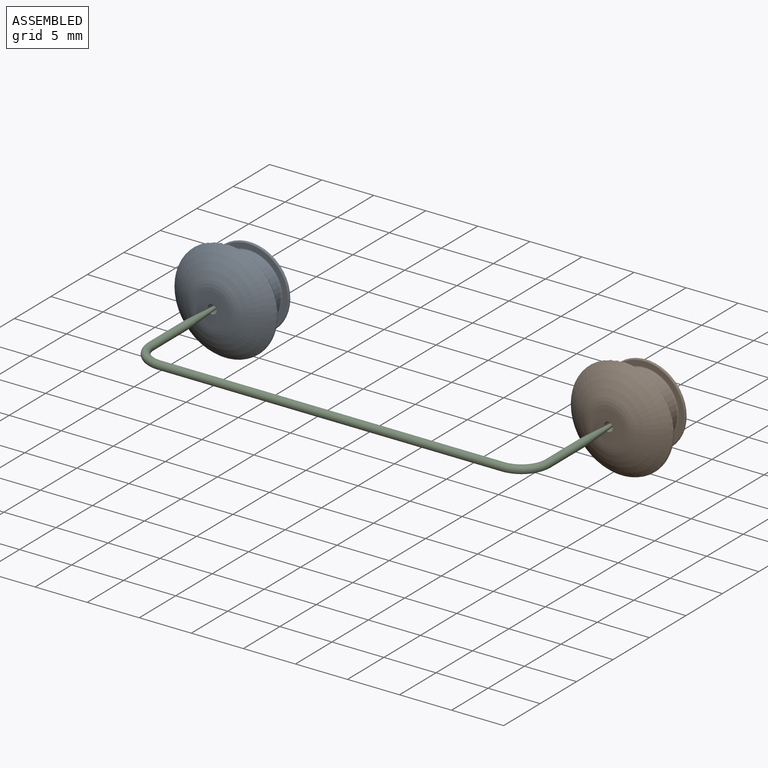
[diagram: assembled view]
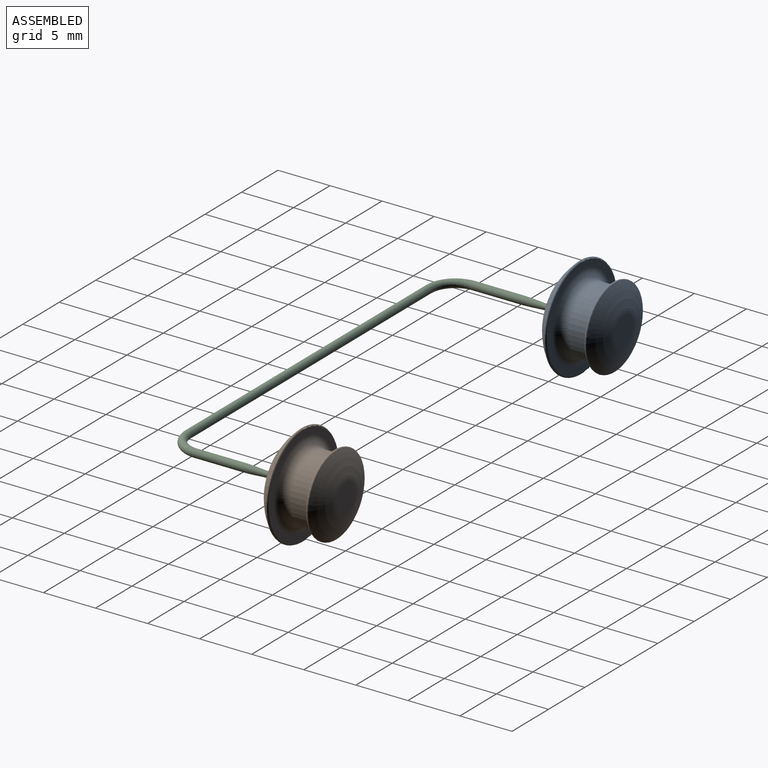
[diagram: assembled view, second angle]
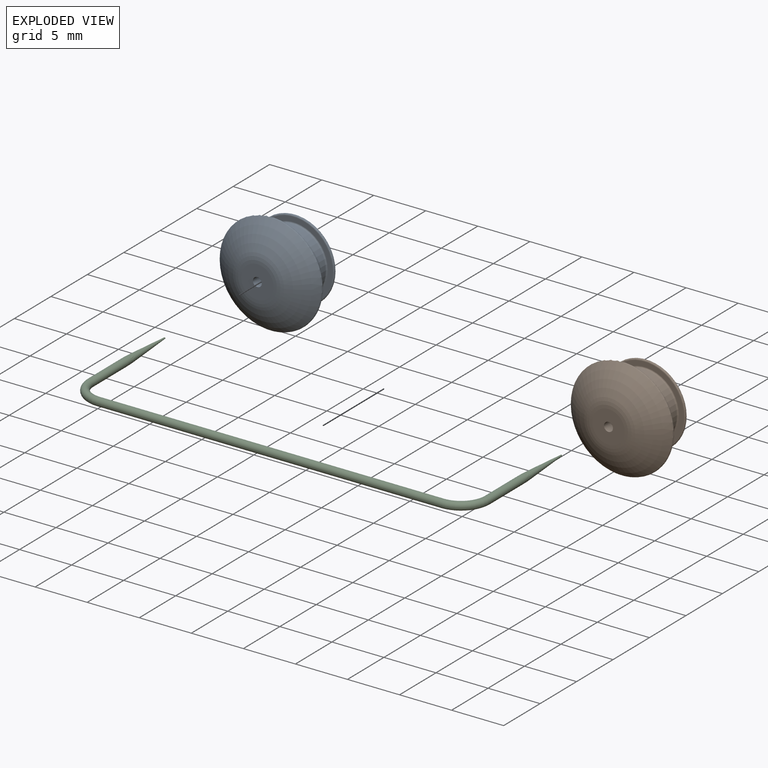
[diagram: exploded view]
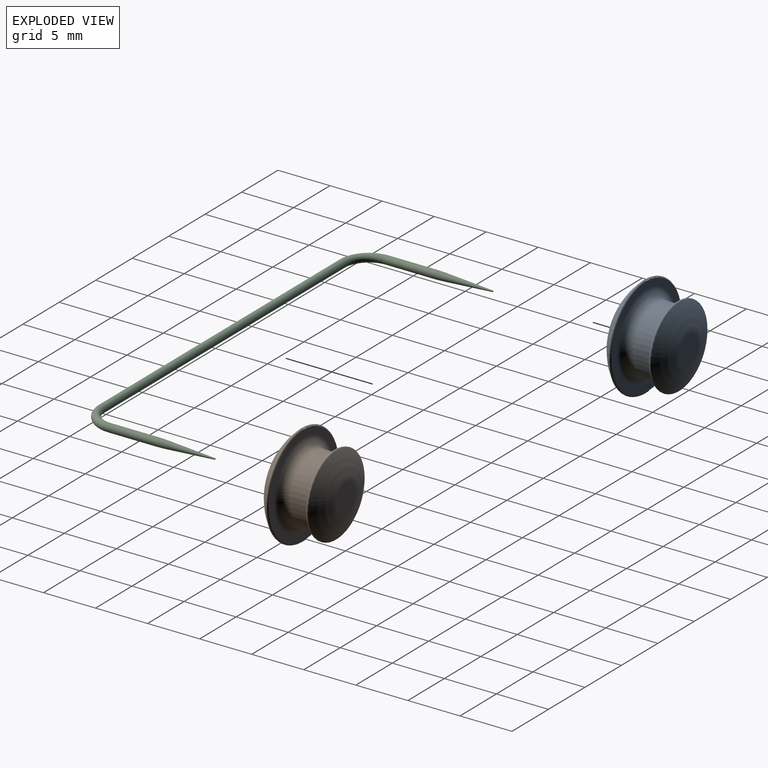
[diagram: exploded view, second angle]
ASSEMBLY  parts=3 mates=2
PART A: 15 faces, bbox 10.7x10.7x6.1 mm
  f0: torus R=0.2mm, axis (0,0,1), area 69.7mm2, adj f9,f13
  f1: plane 3.11x3.11mm, normal (0,0,1), area 7mm2, adj f11,f13
  f2: plane 2.57x2.57mm, normal (0,0,-1), area 5.2mm2, adj f14
  f3: torus R=0.59mm, axis (0,0,1), area 39.9mm2, adj f7,f14
  f4: plane 7.56x7.56mm, normal (0,0,1), area 10.5mm2, adj f7,f8
  f5: cylinder r=3.17mm len=6.35mm, axis (0,0,1), area 37.4mm2, adj f8,f12
  f6: plane 9.58x9.58mm, normal (0,0,-1), area 19.5mm2, adj f9,f12
  f7: torus R=3.78mm, axis (0,0,1), area 8.2mm2, adj f3,f4
  f8: torus R=3.31mm, axis (0,0,1), area 4.2mm2, adj f4,f5
  f9: torus R=4.79mm, axis (0,0,-1), area 9.3mm2, adj f0,f6
  f10: cone r=0mm half-angle=59deg, axis (0,0,1), area 0.7mm2, adj f11
  f11: cylinder r=0.43mm len=3.3mm, axis (0,0,1), area 9mm2, adj f1,f10
  f12: torus R=4.09mm, axis (0,0,-1), area 31.9mm2, adj f5,f6
  f13: torus R=1.55mm, axis (0,0,-1), area 11.6mm2, adj f0,f1
  f14: torus R=1.29mm, axis (0,0,-1), area 5.1mm2, adj f2,f3
PART B: same geometry as A
PART C: 13 faces, bbox 39.3x13.3x0.8 mm
  f0: cylinder r=0.38mm len=33.02mm, axis (-1,0,0), area 79mm2, adj f1,f7
  f1: torus R=2.54mm, axis (0,0,-1), area 9.6mm2, adj f0,f2
  f2: cylinder r=0.38mm len=4.53mm, axis (0,1,0), area 10.8mm2, adj f1,f6
  f3: plane 0.03x0.03mm, normal (0,1,0), area 0mm2, adj f5
  f4: cone r=0.38mm half-angle=3.6deg, axis (0,-1,0), area 5.8mm2, adj f5,f6
  f5: torus R=0.02mm, axis (0,-1,0), area 0mm2, adj f3,f4
  f6: revolved ~1.11x0.76mm, area 2.6mm2, adj f2,f4
  f7: torus R=2.54mm, axis (0,0,-1), area 9.6mm2, adj f0,f8
  f8: cylinder r=0.38mm len=4.53mm, axis (0,1,0), area 10.8mm2, adj f7,f12
  f9: plane 0.03x0.03mm, normal (0,1,0), area 0mm2, adj f11
  f10: cone r=0.38mm half-angle=3.6deg, axis (0,-1,0), area 5.8mm2, adj f11,f12
  f11: torus R=0.02mm, axis (0,-1,0), area 0mm2, adj f9,f10
  f12: revolved ~1.11x0.76mm, area 5.2mm2, adj f8,f10
PLACE A rot(axis=(1,0,0),90deg) t=(-21.22,21.51,3.03)mm
PLACE B rot(axis=(1,0,0),90deg) t=(16.88,21.46,3.03)mm
PLACE C t=(-2.17,4.43,3.03)mm
MATE fastened B.f0 <-> C.f11  axis (0,-1,0) through (16.88,17.08,3.03)mm
MATE fastened A.f0 <-> C.f5  axis (0,-1,0) through (-21.22,17.13,3.03)mm
